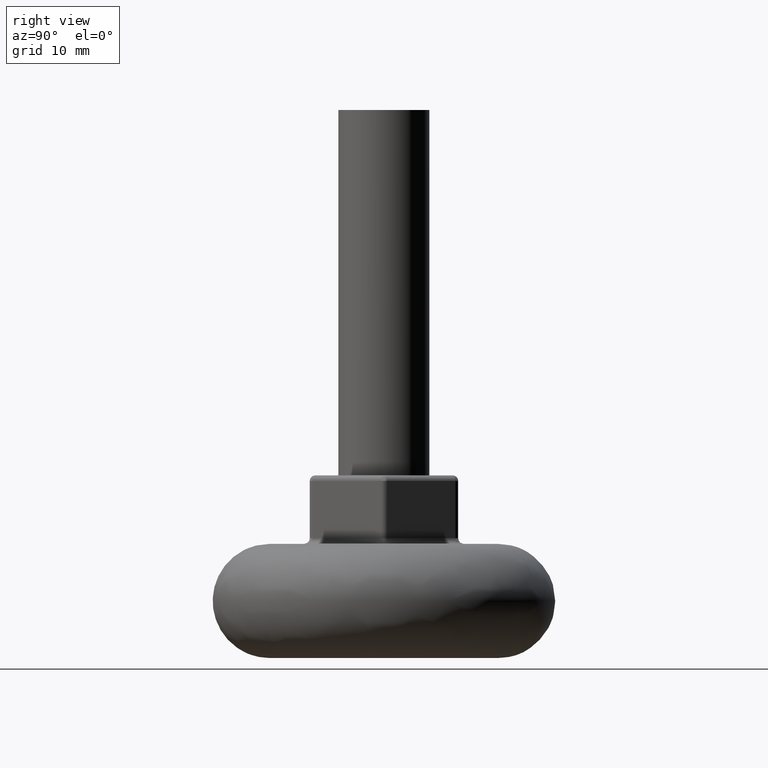
[diagram: clean part render]
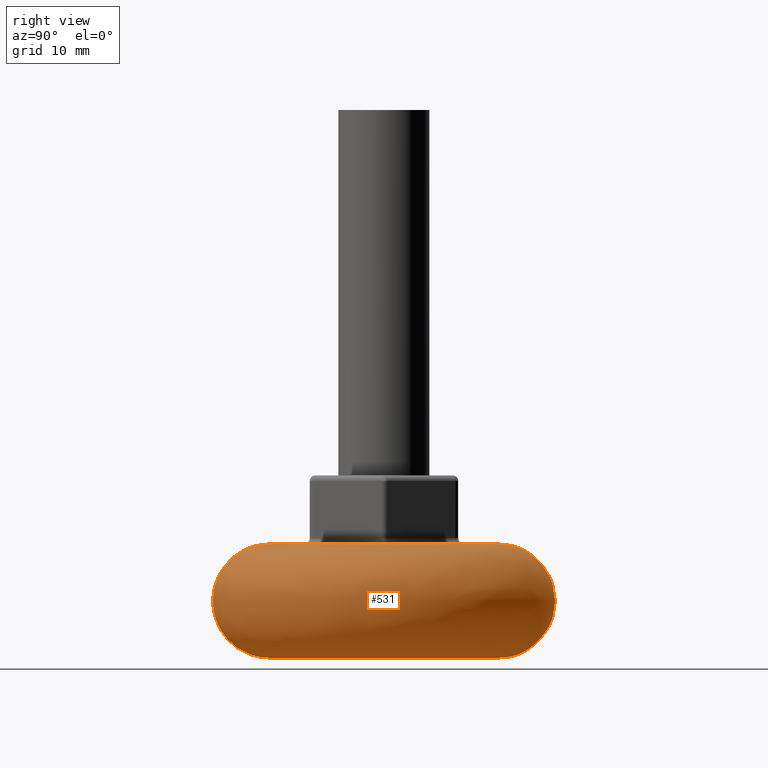
[diagram: same view with one face highlighted and labeled with its STEP entity id]
A machine part, right view. The second image highlights one B-rep face of the part: STEP entity #531.
In plain terms, the highlighted face is a freeform B-spline surface patch.
Its self-contained STEP definition (entity closure, byte-faithful):
#388=CARTESIAN_POINT('',(-0.647964326831845,9.269429842146064,9.949626890274073));
#389=CARTESIAN_POINT('',(-0.382677483162714,9.287974284900653,9.949626890274072));
#390=CARTESIAN_POINT('',(-0.116764266952523,9.291316024830799,9.949626890274072));
#391=CARTESIAN_POINT('',(9.174551757878275,9.408080291783321,9.949626890274073));
#392=CARTESIAN_POINT('',(9.291316024830799,0.116764266952524,9.949626890274072));
#393=CARTESIAN_POINT('',(9.408080291783321,-9.174551757878273,9.949626890274073));
#394=CARTESIAN_POINT('',(0.116764266952516,-9.291316024830799,9.949626890274072));
#395=CARTESIAN_POINT('',(-1.045997947805763,14.963485165334507,10.766040997154827));
#396=CARTESIAN_POINT('',(-0.617749844373070,14.993421148321953,10.766040997154828));
#397=CARTESIAN_POINT('',(-0.188490598250294,14.998815663057236,10.766040997154828));
#398=CARTESIAN_POINT('',(14.810325064806939,15.187306261307530,10.766040997154828));
#399=CARTESIAN_POINT('',(14.998815663057236,0.188490598250295,10.766040997154828));
#400=CARTESIAN_POINT('',(15.187306261307530,-14.810325064806939,10.766040997154828));
#401=CARTESIAN_POINT('',(0.188490598250283,-14.998815663057236,10.766040997154828));
#402=CARTESIAN_POINT('',(-1.045997947805763,14.963485165334509,5.000000000000001));
#403=CARTESIAN_POINT('',(-0.617749844373070,14.993421148321948,5.0));
#404=CARTESIAN_POINT('',(-0.188490598250294,14.998815663057240,5.0));
#405=CARTESIAN_POINT('',(14.810325064806939,15.187306261307533,5.000000000000001));
#406=CARTESIAN_POINT('',(14.998815663057240,0.188490598250295,5.0));
#407=CARTESIAN_POINT('',(15.187306261307533,-14.810325064806939,5.000000000000001));
#408=CARTESIAN_POINT('',(0.188490598250283,-14.998815663057240,5.0));
#409=CARTESIAN_POINT('',(-1.045997947805763,14.963485165334509,-0.766051883237120));
#410=CARTESIAN_POINT('',(-0.617749844373070,14.993421148321955,-0.766051883237120));
#411=CARTESIAN_POINT('',(-0.188490598250294,14.998815663057238,-0.766051883237120));
#412=CARTESIAN_POINT('',(14.810325064806943,15.187306261307530,-0.766051883237120));
#413=CARTESIAN_POINT('',(14.998815663057238,0.188490598250295,-0.766051883237120));
#414=CARTESIAN_POINT('',(15.187306261307530,-14.810325064806943,-0.766051883237120));
#415=CARTESIAN_POINT('',(0.188490598250283,-14.998815663057238,-0.766051883237120));
#416=CARTESIAN_POINT('',(-0.647963681760345,9.269420614099444,0.050374432852809));
#417=CARTESIAN_POINT('',(-0.382677102193689,9.287965038392384,0.050374432852809));
#418=CARTESIAN_POINT('',(-0.116764150709549,9.291306774995706,0.050374432852809));
#419=CARTESIAN_POINT('',(9.174542624286158,9.408070925705257,0.050374432852809));
#420=CARTESIAN_POINT('',(9.291306774995706,0.116764150709549,0.050374432852809));
#421=CARTESIAN_POINT('',(9.408070925705257,-9.174542624286156,0.050374432852809));
#422=CARTESIAN_POINT('',(0.116764150709541,-9.291306774995706,0.050374432852809));
#430=(BOUNDED_SURFACE()B_SPLINE_SURFACE(2,2,((#388,#395,#402,#409,#416),(#389,#396,#403,#410,#417),(#390,#397,#404,#411,#418),(#391,#398,#405,#412,#419),(#392,#399,#406,#413,#420),(#393,#400,#407,#414,#421),(#394,#401,#408,#415,#422)),.UNSPECIFIED.,.F.,.F.,.U.)B_SPLINE_SURFACE_WITH_KNOTS((3,2,2,3),(3,2,3),(0.0,0.994111601635822,25.846925344021528,50.699739086407241),(0.0,9.129208550381414,18.258428339320211),.UNSPECIFIED.)GEOMETRIC_REPRESENTATION_ITEM()RATIONAL_B_SPLINE_SURFACE(((0.968327546058515,0.637386982966520,0.977505821353428,0.637386564261540,0.968328360871570),(0.979004802937525,0.644415126053197,0.988284282420452,0.644414702731370,0.979005626735110),(0.990610515974007,0.652054411383465,1.0,0.652053983043325,0.990611349537385),(0.700467413359925,0.461072095991851,0.707106781186548,0.461071793109633,0.700468002778242),(0.990610515974007,0.652054411383465,1.0,0.652053983043325,0.990611349537385),(0.700467413359925,0.461072095991851,0.707106781186548,0.461071793109633,0.700468002778242),(0.990610515974007,0.652054411383465,1.0,0.652053983043325,0.990611349537385)))REPRESENTATION_ITEM('')SURFACE());
#431=CARTESIAN_POINT('',(-0.697329160819693,9.975647072016340,1.951116E-011));
#432=VERTEX_POINT('',#431);
#433=CARTESIAN_POINT('',(10.0,0.0,0.0));
#434=VERTEX_POINT('',#433);
#435=CARTESIAN_POINT('',(-0.697329160819693,9.975647072016340,1.951116E-011));
#436=CARTESIAN_POINT('',(-0.349089143239083,9.999990307609236,1.919358E-011));
#437=CARTESIAN_POINT('',(0.000000665507060,9.999990479584216,1.885302E-011));
#438=CARTESIAN_POINT('',(10.000000321137442,9.999995405966120,9.097442E-012));
#439=CARTESIAN_POINT('',(10.0,0.0,0.0));
#447=(BOUNDED_CURVE()B_SPLINE_CURVE(2,(#435,#436,#437,#438,#439),.UNSPECIFIED.,.F.,.U.)B_SPLINE_CURVE_WITH_KNOTS((3,2,3),(0.237833732500926,0.250000000000000,0.500000000000000),.UNSPECIFIED.)CURVE()GEOMETRIC_REPRESENTATION_ITEM()RATIONAL_B_SPLINE_CURVE((0.972879973608697,0.985746331005003,1.0,0.707106781186548,1.0))REPRESENTATION_ITEM(''));
#448=EDGE_CURVE('',#432,#434,#447,.T.);
#449=ORIENTED_EDGE('',*,*,#448,.F.);
#450=CARTESIAN_POINT('',(-0.697332515771808,9.975656738490059,9.999999999999998));
#451=VERTEX_POINT('',#450);
#452=CARTESIAN_POINT('',(-0.697332515771808,9.975656738490059,9.999999999999998));
#453=CARTESIAN_POINT('',(-1.045998773638240,14.963485107519068,9.999999999826517));
#454=CARTESIAN_POINT('',(-1.045997440539177,14.963485200750728,5.000000000004879));
#455=CARTESIAN_POINT('',(-1.045996107437481,14.963485293982563,-0.000009876807347));
#456=CARTESIAN_POINT('',(-0.697329160819693,9.975647072016342,1.951116E-011));
#464=(BOUNDED_CURVE()B_SPLINE_CURVE(2,(#452,#453,#454,#455,#456),.UNSPECIFIED.,.F.,.U.)B_SPLINE_CURVE_WITH_KNOTS((3,2,3),(-3.793812489392083,-2.0,-0.206185088074748),.UNSPECIFIED.)CURVE()GEOMETRIC_REPRESENTATION_ITEM()RATIONAL_B_SPLINE_CURVE((0.913747050114148,0.668278774904981,0.977505800795127,0.668278357295710,0.913747713122070))REPRESENTATION_ITEM(''));
#465=EDGE_CURVE('',#451,#432,#464,.T.);
#466=ORIENTED_EDGE('',*,*,#465,.F.);
#467=CARTESIAN_POINT('',(10.0,0.0,10.0));
#468=VERTEX_POINT('',#467);
#469=CARTESIAN_POINT('',(-0.697332515771808,9.975656738490059,9.999999999999998));
#470=CARTESIAN_POINT('',(-0.349091158758495,9.999999999999998,9.999999999999998));
#471=CARTESIAN_POINT('',(0.0,10.0,10.0));
#472=CARTESIAN_POINT('',(10.000000000000002,10.000000000000002,10.000000000000002));
#473=CARTESIAN_POINT('',(10.0,0.0,10.0));
#481=(BOUNDED_CURVE()B_SPLINE_CURVE(2,(#469,#470,#471,#472,#473),.UNSPECIFIED.,.F.,.U.)B_SPLINE_CURVE_WITH_KNOTS((3,2,3),(0.237833686534744,0.250000000000000,0.500000000000000),.UNSPECIFIED.)CURVE()GEOMETRIC_REPRESENTATION_ITEM()RATIONAL_B_SPLINE_CURVE((0.972879876386240,0.985746277152270,1.0,0.707106781186548,1.0))REPRESENTATION_ITEM(''));
#482=EDGE_CURVE('',#451,#468,#481,.T.);
#483=ORIENTED_EDGE('',*,*,#482,.T.);
#484=CARTESIAN_POINT('',(0.125660398999122,-9.999210442551867,9.999999999999998));
#485=VERTEX_POINT('',#484);
#486=CARTESIAN_POINT('',(10.0,0.0,10.0));
#487=CARTESIAN_POINT('',(9.999999999999998,-9.875119298758850,9.999999999999998));
#488=CARTESIAN_POINT('',(0.125660398999122,-9.999210442551867,9.999999999999998));
#496=(BOUNDED_CURVE()B_SPLINE_CURVE(2,(#486,#487,#488),.UNSPECIFIED.,.F.,.U.)B_SPLINE_CURVE_WITH_KNOTS((3,3),(0.500000000000000,0.747784295916131),.UNSPECIFIED.)CURVE()GEOMETRIC_REPRESENTATION_ITEM()RATIONAL_B_SPLINE_CURVE((1.0,0.709702639990797,0.994854295631131))REPRESENTATION_ITEM(''));
#497=EDGE_CURVE('',#468,#485,#496,.T.);
#498=ORIENTED_EDGE('',*,*,#497,.T.);
#499=CARTESIAN_POINT('',(0.125660398968713,-9.999210442366941,8.313839E-016));
#500=VERTEX_POINT('',#499);
#501=CARTESIAN_POINT('',(0.125660398999122,-9.999210442551867,9.999999999999998));
#502=CARTESIAN_POINT('',(0.188490598250293,-14.998815663057238,9.999999998968503));
#503=CARTESIAN_POINT('',(0.188490598250292,-14.998815663057240,5.0));
#504=CARTESIAN_POINT('',(0.188490598250293,-14.998815663057240,6.609087E-010));
#505=CARTESIAN_POINT('',(0.125660398968713,-9.999210442366941,8.313839E-016));
#513=(BOUNDED_CURVE()B_SPLINE_CURVE(2,(#501,#502,#503,#504,#505),.UNSPECIFIED.,.F.,.U.)B_SPLINE_CURVE_WITH_KNOTS((3,2,3),(-3.793812489181637,-2.0,-0.206187510727468),.UNSPECIFIED.)CURVE()GEOMETRIC_REPRESENTATION_ITEM()RATIONAL_B_SPLINE_CURVE((0.934774043604947,0.683657093796952,1.0,0.683657093780923,0.934774043630396))REPRESENTATION_ITEM(''));
#514=EDGE_CURVE('',#485,#500,#513,.T.);
#515=ORIENTED_EDGE('',*,*,#514,.T.);
#516=CARTESIAN_POINT('',(10.0,0.0,0.0));
#517=CARTESIAN_POINT('',(9.999999999999998,-9.875119298814338,0.0));
#518=CARTESIAN_POINT('',(0.125660398968713,-9.999210442366941,8.313839E-016));
#526=(BOUNDED_CURVE()B_SPLINE_CURVE(2,(#516,#517,#518),.UNSPECIFIED.,.F.,.U.)B_SPLINE_CURVE_WITH_KNOTS((3,3),(0.500000000000000,0.747784295917119),.UNSPECIFIED.)CURVE()GEOMETRIC_REPRESENTATION_ITEM()RATIONAL_B_SPLINE_CURVE((1.0,0.709702639989640,0.994854295633405))REPRESENTATION_ITEM(''));
#527=EDGE_CURVE('',#434,#500,#526,.T.);
#528=ORIENTED_EDGE('',*,*,#527,.F.);
#529=EDGE_LOOP('',(#449,#466,#483,#498,#515,#528));
#530=FACE_OUTER_BOUND('',#529,.T.);
#531=ADVANCED_FACE('',(#530),#430,.T.);